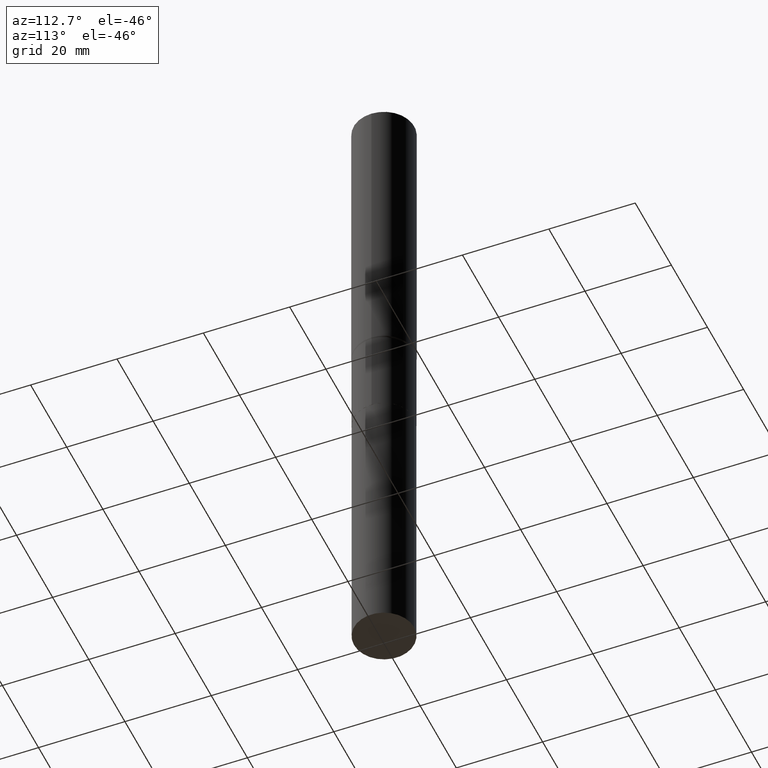
[diagram: clean part render]
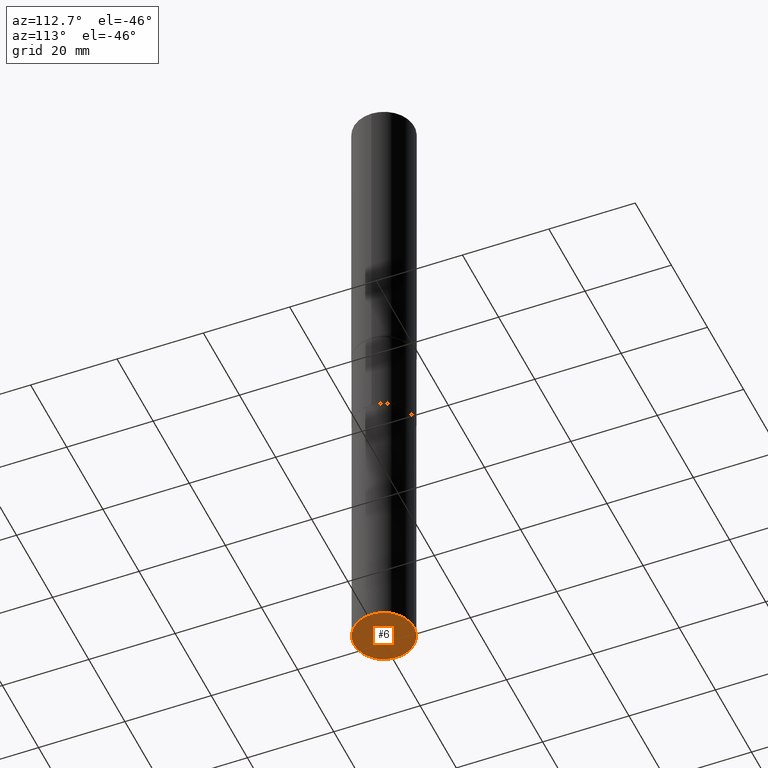
[diagram: same view with one face highlighted and labeled with its STEP entity id]
A machine part, auxiliary view. The second image highlights one B-rep face of the part: STEP entity #6.
In plain terms, the highlighted planar face has unit normal (-0, 0, 1).
Its self-contained STEP definition (entity closure, byte-faithful):
#5 = DIRECTION ( 'NONE',  ( -2.445078219404103595E-29, 3.492040681344403691E-15, 1.000000000000000000 ) ) ;
#6 = ADVANCED_FACE ( 'NONE', ( #275 ), #156, .F. ) ;
#53 = DIRECTION ( 'NONE',  ( -6.982962677686265922E-15, -1.000000000000000000, 3.492040681344403296E-15 ) ) ;
#68 = CARTESIAN_POINT ( 'NONE',  ( 1.942979110936112080E-15, 0.2734499999999787101, -6.102400000000002045 ) ) ;
#89 = DIRECTION ( 'NONE',  ( -6.982962677686265922E-15, -1.000000000000000000, 3.996120670929621909E-15 ) ) ;
#134 = DIRECTION ( 'NONE',  ( -6.982962677686265922E-15, -1.000000000000000000, 3.996120670929621909E-15 ) ) ;
#137 = EDGE_CURVE ( 'NONE', #333, #260, #359, .T. ) ;
#150 = AXIS2_PLACEMENT_3D ( 'NONE', #163, #316, #89 ) ;
#156 = PLANE ( 'NONE',  #450 ) ;
#160 = AXIS2_PLACEMENT_3D ( 'NONE', #173, #5, #134 ) ;
#163 = CARTESIAN_POINT ( 'NONE',  ( 1.492223714302713929E-28, -2.130783589276710899E-14, -6.102400000000001157 ) ) ;
#173 = CARTESIAN_POINT ( 'NONE',  ( 1.492223714302713929E-28, -2.130783589276710899E-14, -6.102400000000001157 ) ) ;
#185 = EDGE_CURVE ( 'NONE', #260, #333, #189, .T. ) ;
#189 = CIRCLE ( 'NONE', #160, 0.2734500000000000264 ) ;
#260 = VERTEX_POINT ( 'NONE', #68 ) ;
#275 = FACE_OUTER_BOUND ( 'NONE', #446, .T. ) ;
#299 = ORIENTED_EDGE ( 'NONE', *, *, #137, .F. ) ;
#316 = DIRECTION ( 'NONE',  ( -2.445078219404103595E-29, 3.492040681344403691E-15, 1.000000000000000000 ) ) ;
#330 = CARTESIAN_POINT ( 'NONE',  ( -1.909491144213160534E-15, -0.2734500000000213427, -6.102400000000000269 ) ) ;
#333 = VERTEX_POINT ( 'NONE', #330 ) ;
#359 = CIRCLE ( 'NONE', #150, 0.2734500000000000264 ) ;
#363 = ORIENTED_EDGE ( 'NONE', *, *, #185, .F. ) ;
#374 = CARTESIAN_POINT ( 'NONE',  ( -2.105372815281584395E-29, -4.569234250443734576E-14, -6.102400000000001157 ) ) ;
#439 = DIRECTION ( 'NONE',  ( -2.445078219404103595E-29, 3.492040681344403296E-15, 1.000000000000000000 ) ) ;
#446 = EDGE_LOOP ( 'NONE', ( #299, #363 ) ) ;
#450 = AXIS2_PLACEMENT_3D ( 'NONE', #374, #439, #53 ) ;